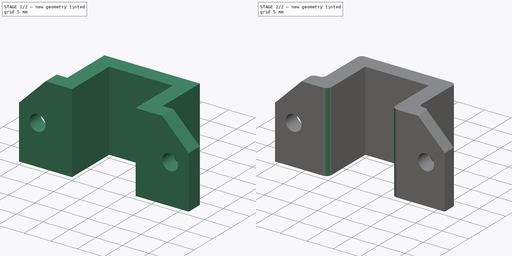
[diagram: build sequence overview — one tinted view per stage of 2, left to right]
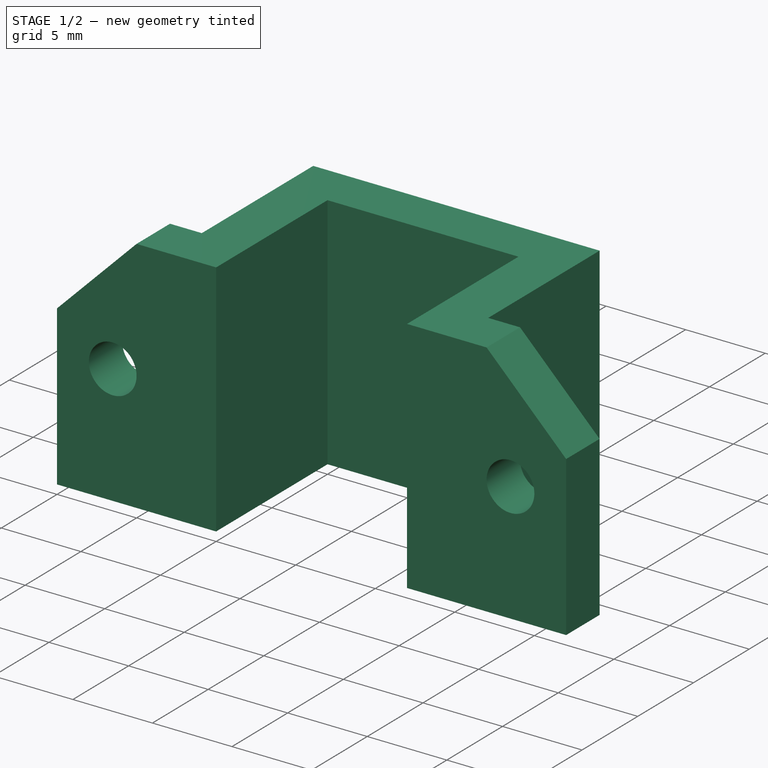
[diagram: stage 1 of 2 — iso view after this stage's code; geometry added in this stage tinted green]
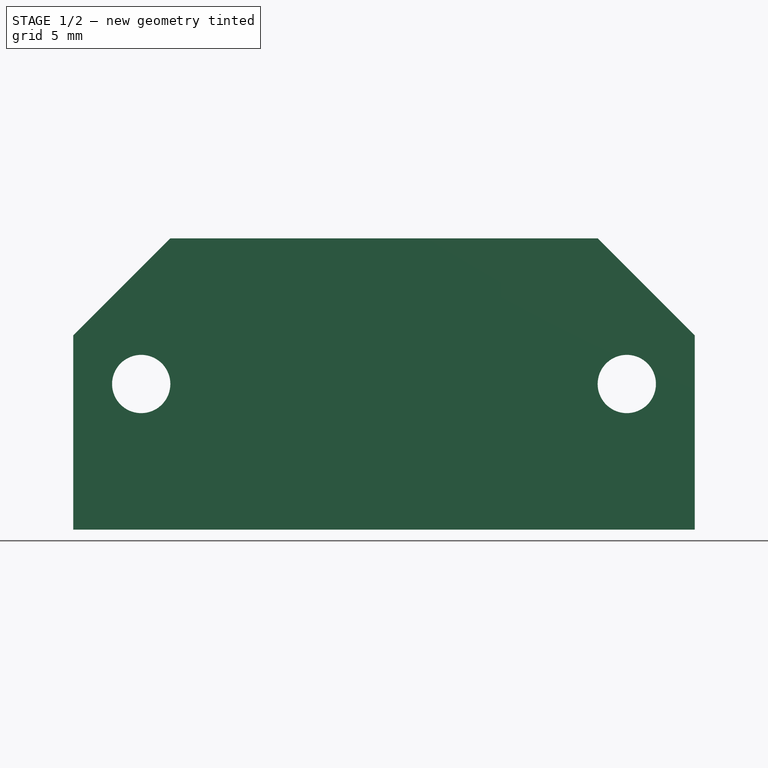
[diagram: stage 1 of 2 — front view after this stage's code; geometry added in this stage tinted green]
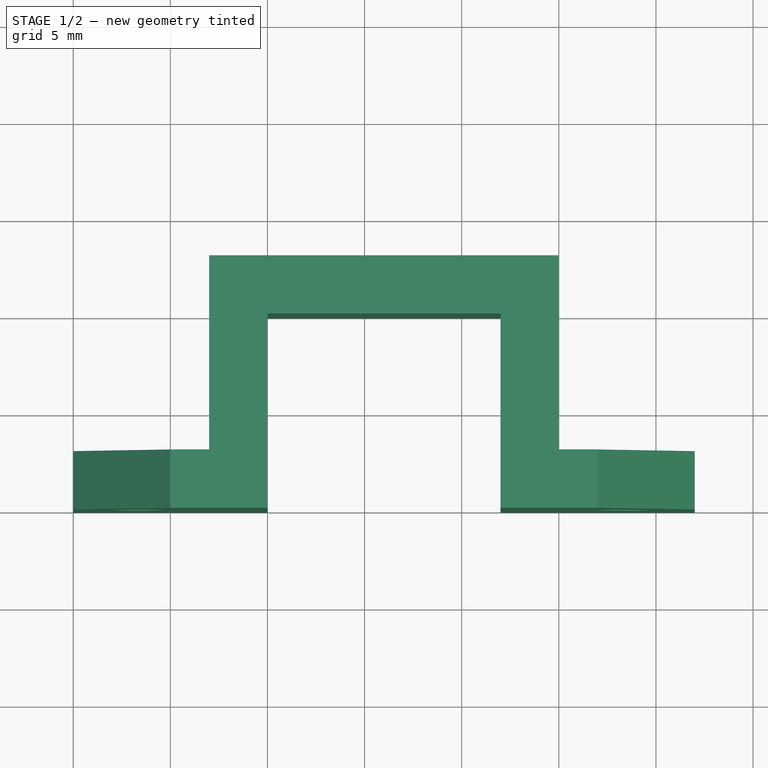
[diagram: stage 1 of 2 — top view after this stage's code; geometry added in this stage tinted green]
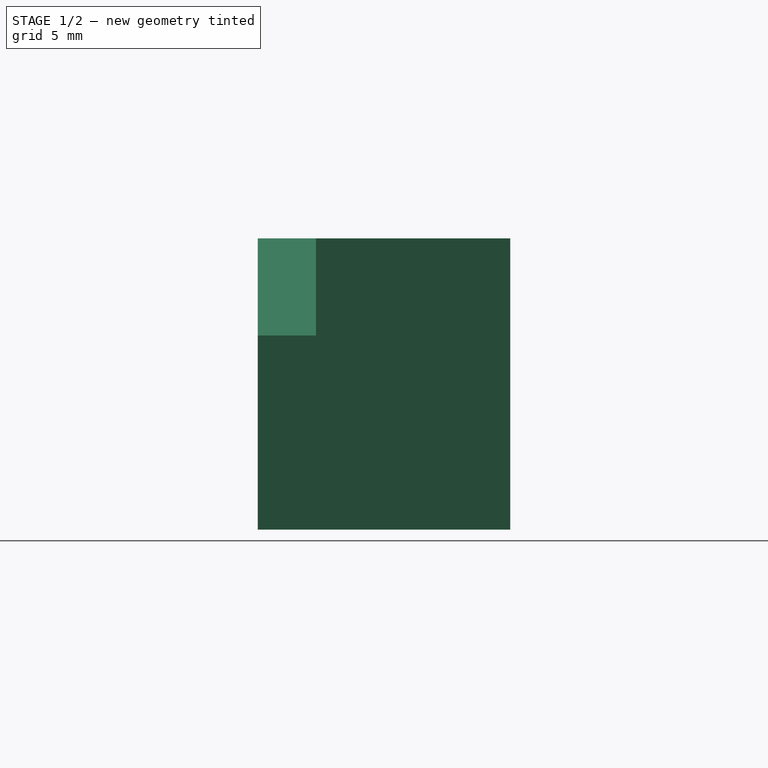
[diagram: stage 1 of 2 — right view after this stage's code; geometry added in this stage tinted green]
FCSTD DOCUMENT  (FreeCAD 0.15R4671 (Git))
Label: motor_mount
License: All rights reserved
LicenseURL: http://en.wikipedia.org/wiki/All_rights_reserved
objects: Sketcher::SketchObject×2, PartDesign::Fillet×2, PartDesign::Pad×1, PartDesign::Pocket×1
note: 8 computed .brp shape members not serialized (recipe doc carries the construction recipe); baked Part::Feature solids carry a one-line shape summary decoded from their .brp

FEATURE [Sketcher::SketchObject] Sketch
  sketch-geometry (12):
    g0: LineSegment StartX=0 StartY=0 StartZ=0 EndX=10 EndY=0 EndZ=0
    g1: LineSegment StartX=10 StartY=0 StartZ=0 EndX=10 EndY=10 EndZ=0
    g2: LineSegment StartX=10 StartY=10 StartZ=0 EndX=22 EndY=10 EndZ=0
    g3: LineSegment StartX=22 StartY=10 StartZ=0 EndX=22 EndY=0 EndZ=0
    g4: LineSegment StartX=22 StartY=0 StartZ=0 EndX=32 EndY=0 EndZ=0
    g5: LineSegment StartX=32 StartY=0 StartZ=0 EndX=32 EndY=3 EndZ=0
    g6: LineSegment StartX=32 StartY=3 StartZ=0 EndX=25 EndY=3 EndZ=0
    g7: LineSegment StartX=25 StartY=3 StartZ=0 EndX=25 EndY=13 EndZ=0
    g8: LineSegment StartX=25 StartY=13 StartZ=0 EndX=7 EndY=13 EndZ=0
    g9: LineSegment StartX=7 StartY=13 StartZ=0 EndX=7 EndY=3 EndZ=0
    g10: LineSegment StartX=7 StartY=3 StartZ=0 EndX=0 EndY=3 EndZ=0
    g11: LineSegment StartX=0 StartY=3 StartZ=0 EndX=0 EndY=0 EndZ=0
  constraints (35):
    c: Coincident(g-1,g0)
    c: Horizontal(g0)
    c: Coincident(g0,g1)
    c: Vertical(g1)
    c: Coincident(g1,g2)
    c: Horizontal(g2)
    c: Coincident(g2,g3)
    c: PointOnObject(g3,g-1)
    c: Vertical(g3)
    c: Coincident(g3,g4)
    c: Horizontal(g4)
    c: Coincident(g4,g5)
    c: Vertical(g5)
    c: Coincident(g5,g6)
    c: Horizontal(g6)
    c: Coincident(g6,g7)
    c: Vertical(g7)
    c: Coincident(g7,g8)
    c: Horizontal(g8)
    c: Coincident(g8,g9)
    c: Vertical(g9)
    c: Coincident(g9,g10)
    c: PointOnObject(g10,g-2)
    c: Horizontal(g10)
    c: Coincident(g10,g11)
    c: Coincident(g11,g0)
    c: Distance(g1) = 10
    c: Distance(g2) = 12
    c: DistanceX(g4) = 32
    c: Distance(g11) = 3
    c: Distance(g10) = 7
    c: Distance(g9) = 10
    c: Distance(g0) = 10
    c: Distance(g8) = 18
    c: Distance(g7) = 10
FEATURE [PartDesign::Pad] Pad
  Length = 15
  Length2 = 100
  Sketch = -> Sketch
  Type = 0
FEATURE [Sketcher::SketchObject] Sketch001
  Placement = pos=(0,3,0) rot=(0,0.707107,0.707107;3.14159rad)
  Support = -> Pad [Face11]
  sketch-geometry (8):
    g0: Circle CenterX=-28.5 CenterY=7.5 CenterZ=0 NormalX=0 NormalY=0 NormalZ=1 Radius=1.5
    g1: Circle CenterX=-3.5 CenterY=7.5 CenterZ=0 NormalX=0 NormalY=0 NormalZ=1 Radius=1.5
    g2: LineSegment StartX=-32 StartY=10 StartZ=0 EndX=-27 EndY=15 EndZ=0
    g3: LineSegment StartX=-27 StartY=15 StartZ=0 EndX=-32 EndY=15 EndZ=0
    g4: LineSegment StartX=-32 StartY=15 StartZ=0 EndX=-32 EndY=10 EndZ=0
    g5: LineSegment StartX=-5 StartY=15 StartZ=0 EndX=0 EndY=10 EndZ=0
    g6: LineSegment StartX=0 StartY=10 StartZ=0 EndX=0 EndY=15 EndZ=0
    g7: LineSegment StartX=0 StartY=15 StartZ=0 EndX=-5 EndY=15 EndZ=0
  constraints (24):
    c: DistanceX(g-1,g1) = -3.5
    c: DistanceY(g1) = 7.5
    c: DistanceX(g1,g0) = -25
    c: DistanceY(g0) = 7.5
    c: Equal(g0,g1)
    c: Radius(g1) = 1.5
    c: Coincident(g2,g3)
    c: Horizontal(g3)
    c: Coincident(g3,g4)
    c: Vertical(g4)
    c: Coincident(g2,g4)
    c: Coincident(g5,g6)
    c: Vertical(g6)
    c: Coincident(g6,g7)
    c: Horizontal(g7)
    c: Coincident(g5,g7)
    c: Angle(g2) = 0.785398
    c: Angle(g5) = -0.785398
    c: PointOnObject(g6,g-2)
    c: DistanceY(g6) = 15
    c: Distance(g7) = 5
    c: DistanceX(g3) = -32
    c: DistanceY(g3) = 15
    c: Equal(g3,g7)
FEATURE [PartDesign::Pocket] Pocket
  Length = 5
  Sketch = -> Sketch001
  Type = 0
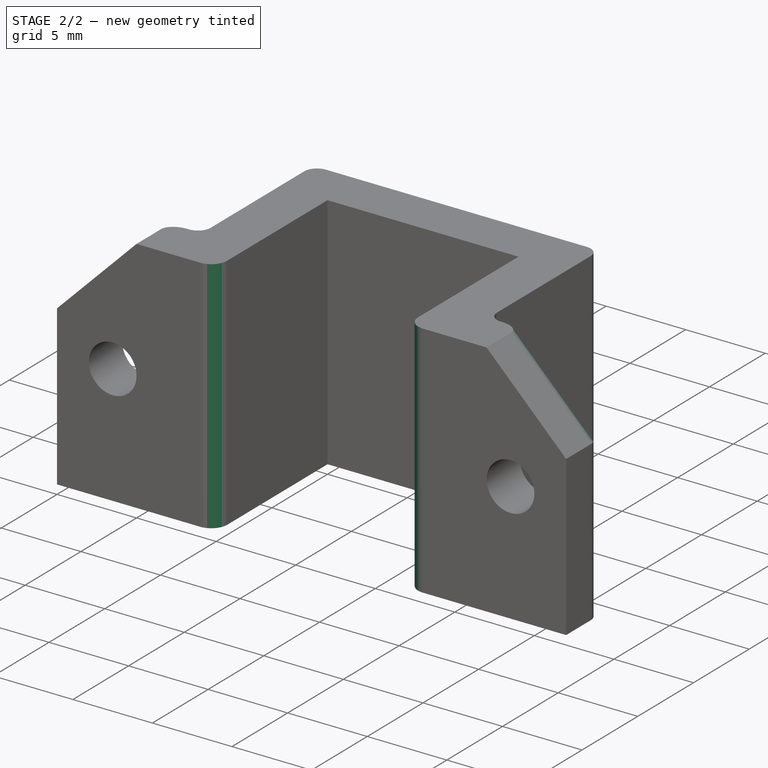
[diagram: stage 2 of 2 — iso view after this stage's code; geometry added in this stage tinted green]
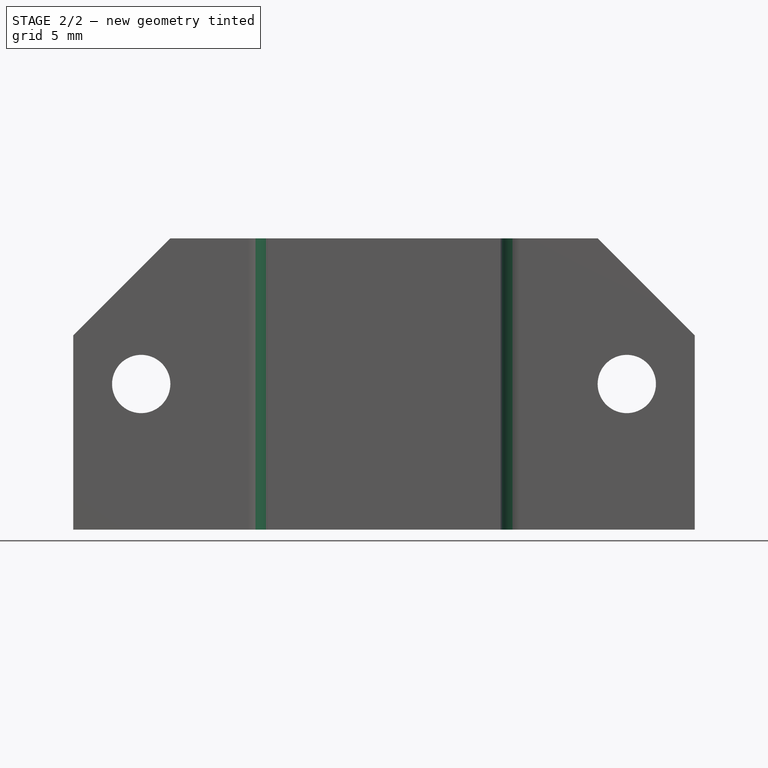
[diagram: stage 2 of 2 — front view after this stage's code; geometry added in this stage tinted green]
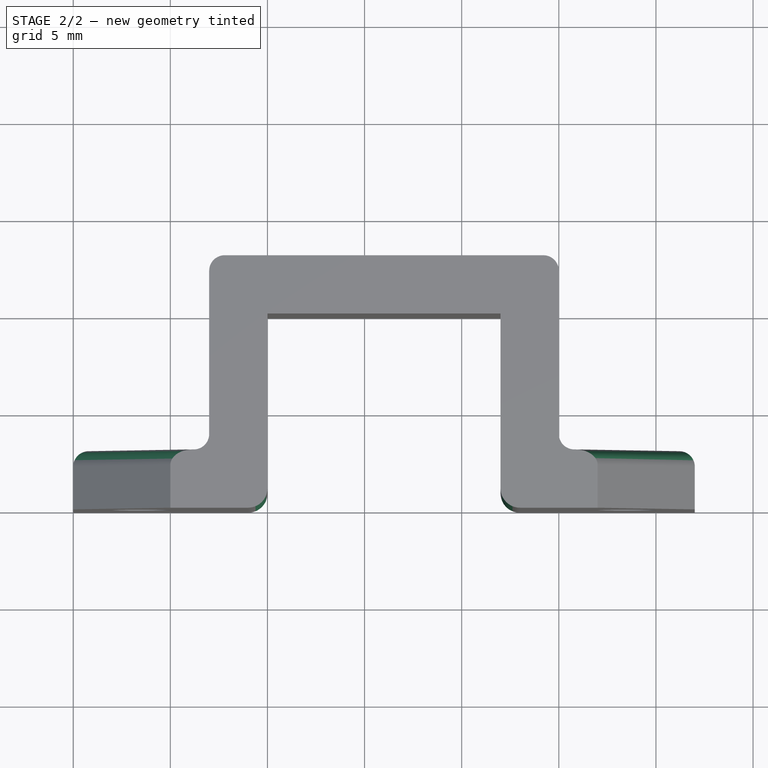
[diagram: stage 2 of 2 — top view after this stage's code; geometry added in this stage tinted green]
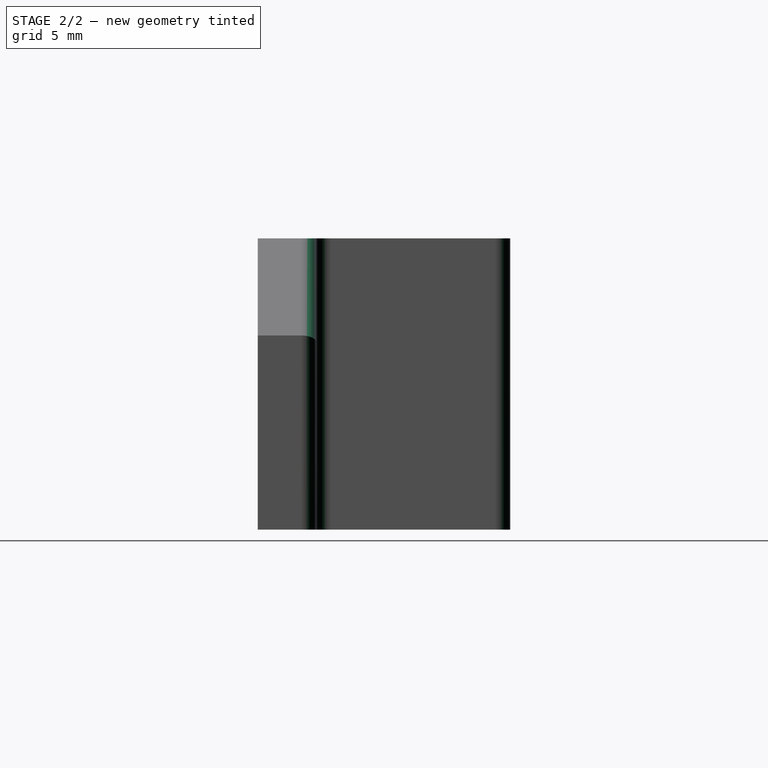
[diagram: stage 2 of 2 — right view after this stage's code; geometry added in this stage tinted green]
FEATURE [PartDesign::Fillet] Fillet
  Base = -> Pocket [Edge2,Edge36]
  Radius = 1
FEATURE [PartDesign::Fillet] Fillet001
  Base = -> Fillet [Edge51,Edge50,Edge44,Edge46,Edge42,Edge40,Edge23,Edge36]
  Radius = 1
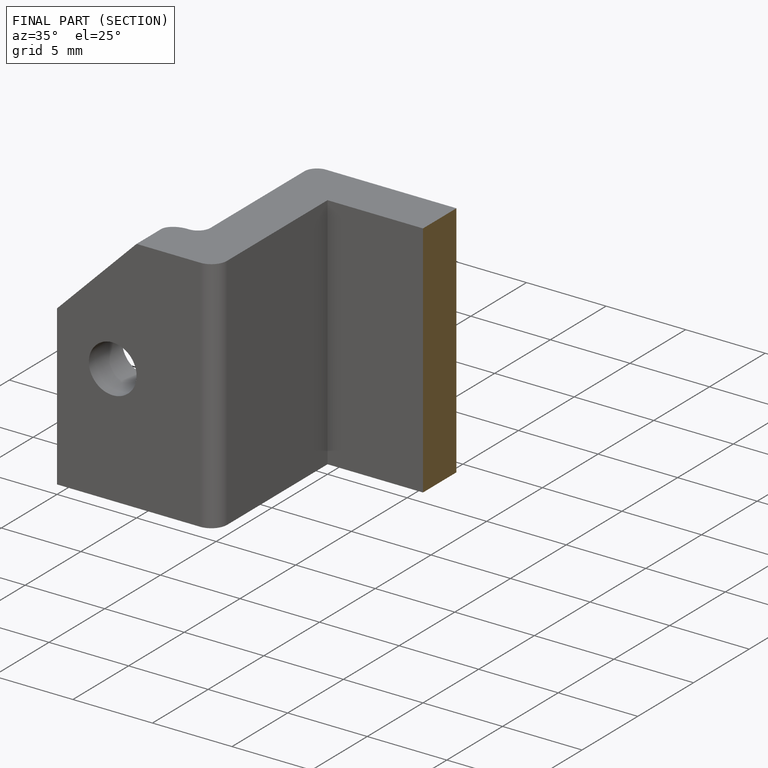
[diagram: finished part — half-section view (interior)]
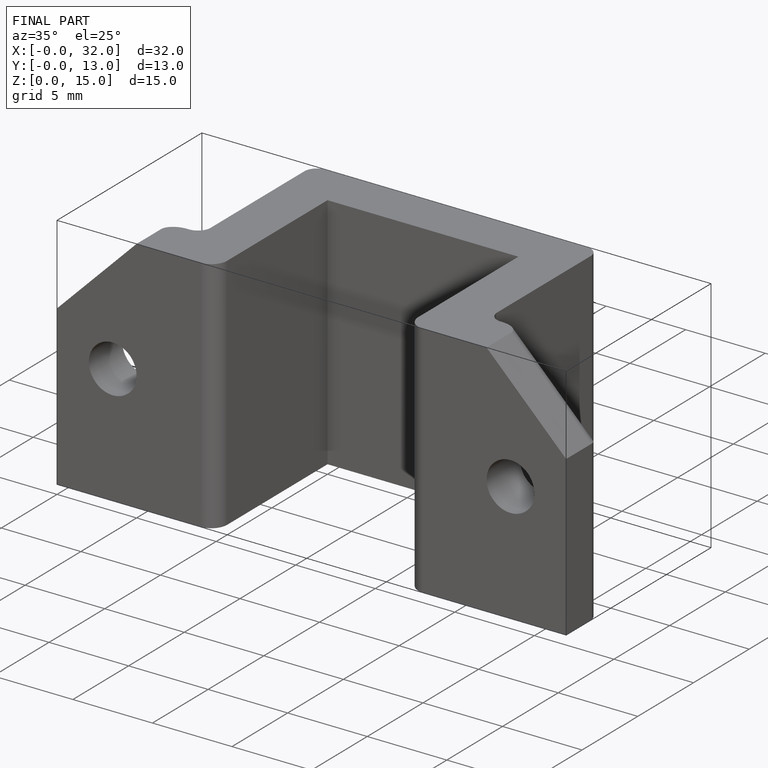
[diagram: finished part — iso view with bounding-box wireframe]
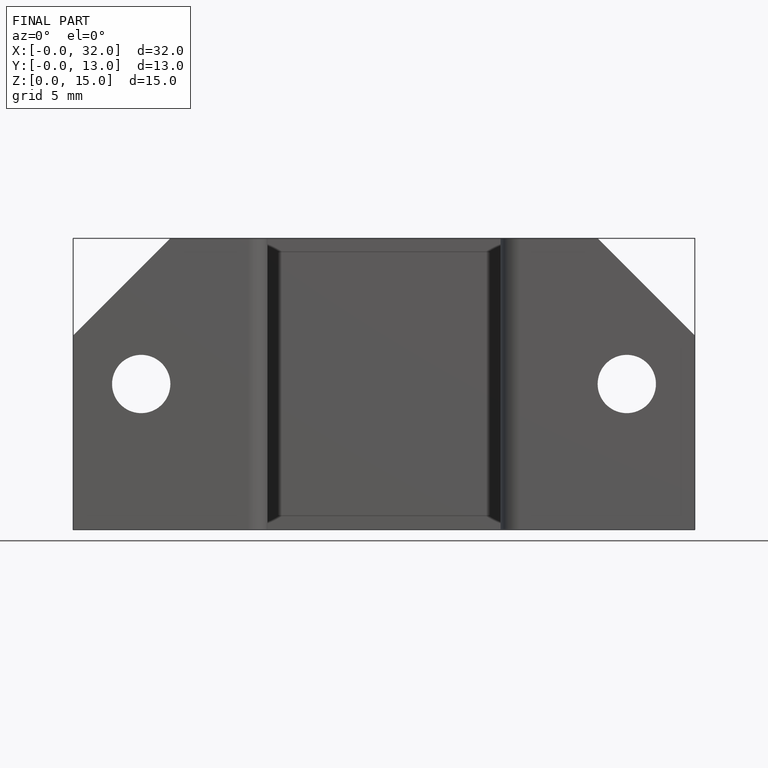
[diagram: finished part — front view with bounding-box wireframe]
